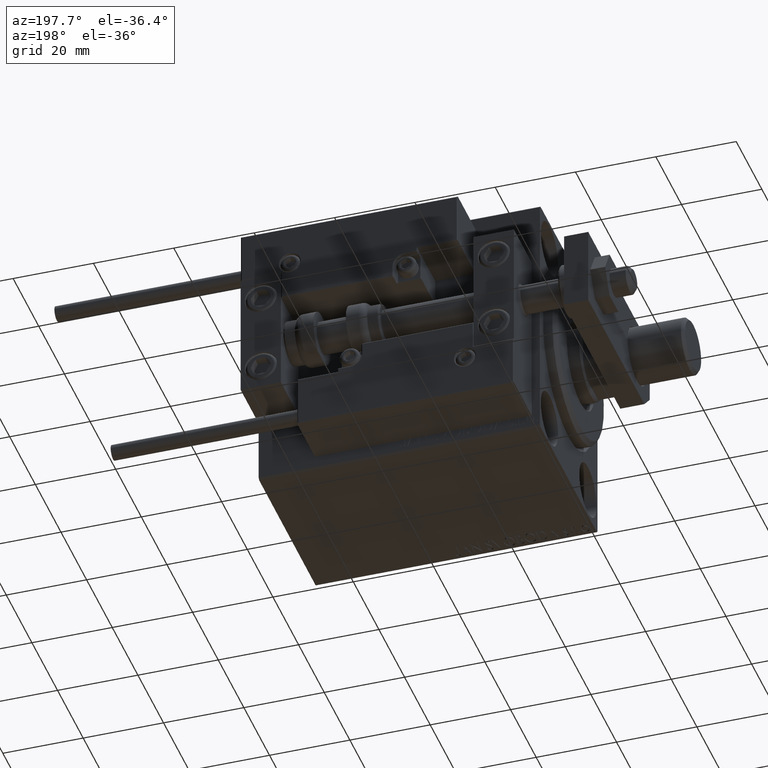
[diagram: clean part render]
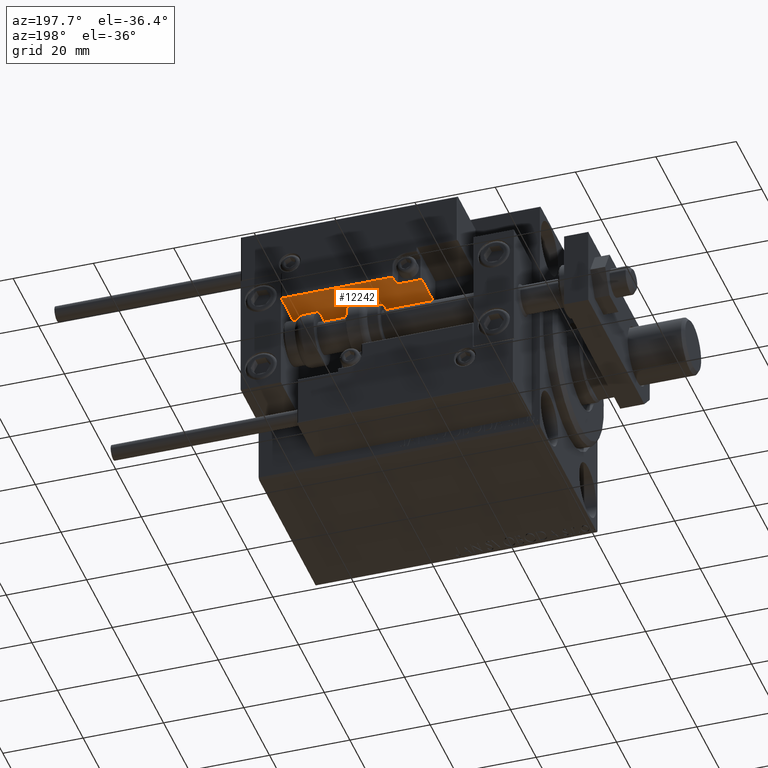
[diagram: same view with one face highlighted and labeled with its STEP entity id]
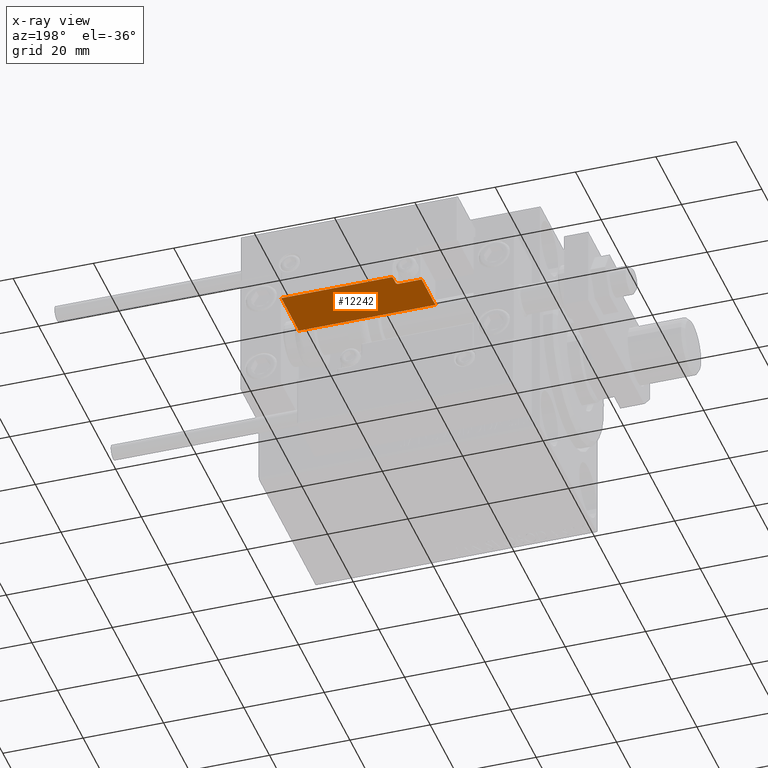
[diagram: x-ray of the same camera — body ghosted, the highlighted face saturated]
A machine part, auxiliary view. The second image highlights one B-rep face of the part: STEP entity #12242.
The next image is the same camera in x-ray: the body ghosted, the highlighted face saturated — about 0% of this face is hidden behind the body in this view.
In plain terms, the highlighted planar face has unit normal (0, 0, 1).
Its self-contained STEP definition (entity closure, byte-faithful):
#562 = DIRECTION ( 'NONE',  ( 0.000000000000000000, -0.000000000000000000, 1.000000000000000000 ) ) ;
#1618 = LINE ( 'NONE', #32215, #24381 ) ;
#1845 = CARTESIAN_POINT ( 'NONE',  ( -16.99999999999999289, 3.252606517456513302E-15, 0.000000000000000000 ) ) ;
#4420 = FACE_OUTER_BOUND ( 'NONE', #16073, .T. ) ;
#4480 = ORIENTED_EDGE ( 'NONE', *, *, #11266, .T. ) ;
#4679 = DIRECTION ( 'NONE',  ( 0.000000000000000000, 1.000000000000000000, 0.000000000000000000 ) ) ;
#5759 = VECTOR ( 'NONE', #41524, 1000.000000000000000 ) ;
#5777 = ORIENTED_EDGE ( 'NONE', *, *, #9289, .F. ) ;
#7116 = ORIENTED_EDGE ( 'NONE', *, *, #19407, .T. ) ;
#7751 = CARTESIAN_POINT ( 'NONE',  ( 16.99999999999999289, 3.252606517456513302E-15, 10.69999999999999929 ) ) ;
#8753 = CARTESIAN_POINT ( 'NONE',  ( 16.99999999999999289, 3.252606517456513302E-15, 0.000000000000000000 ) ) ;
#9057 = DIRECTION ( 'NONE',  ( 1.000000000000000000, 0.000000000000000000, 0.000000000000000000 ) ) ;
#9289 = EDGE_CURVE ( 'NONE', #13758, #43173, #19810, .T. ) ;
#9803 = LINE ( 'NONE', #1845, #28023 ) ;
#10137 = CIRCLE ( 'NONE', #50305, 0.5999999999999998668 ) ;
#10314 = ORIENTED_EDGE ( 'NONE', *, *, #13569, .T. ) ;
#11266 = EDGE_CURVE ( 'NONE', #33404, #25449, #16734, .T. ) ;
#11305 = CARTESIAN_POINT ( 'NONE',  ( -16.99999999999999289, 3.252606517456513302E-15, 13.70000000000000107 ) ) ;
#11585 = CARTESIAN_POINT ( 'NONE',  ( 10.70000000000000107, 3.252606517456513302E-15, 13.70000000000000107 ) ) ;
#11826 = CARTESIAN_POINT ( 'NONE',  ( 16.99999999999999289, 3.252606517456513302E-15, 14.00000000000000000 ) ) ;
#12100 = ORIENTED_EDGE ( 'NONE', *, *, #25245, .T. ) ;
#12242 = ADVANCED_FACE ( 'NONE', ( #4420 ), #23953, .F. ) ;
#12252 = CARTESIAN_POINT ( 'NONE',  ( 11.29999999999999893, 3.252606517456513302E-15, 11.29999999999999893 ) ) ;
#13569 = EDGE_CURVE ( 'NONE', #24704, #33404, #1618, .T. ) ;
#13758 = VERTEX_POINT ( 'NONE', #7751 ) ;
#13919 = VERTEX_POINT ( 'NONE', #36006 ) ;
#16073 = EDGE_LOOP ( 'NONE', ( #5777, #12100, #33713, #7116, #10314, #4480, #39631 ) ) ;
#16734 = LINE ( 'NONE', #20850, #19386 ) ;
#19386 = VECTOR ( 'NONE', #31637, 1000.000000000000000 ) ;
#19407 = EDGE_CURVE ( 'NONE', #47455, #24704, #40102, .T. ) ;
#19810 = LINE ( 'NONE', #11826, #30157 ) ;
#20100 = CARTESIAN_POINT ( 'NONE',  ( -16.99999999999999289, 3.252606517456513302E-15, 14.00000000000000000 ) ) ;
#20237 = DIRECTION ( 'NONE',  ( 0.000000000000000000, 0.000000000000000000, 1.000000000000000000 ) ) ;
#20600 = CARTESIAN_POINT ( 'NONE',  ( 10.70000000000000107, 3.252606517456513302E-15, 14.00000000000000000 ) ) ;
#20850 = CARTESIAN_POINT ( 'NONE',  ( -16.99999999999999289, 3.252606517456513302E-15, 14.00000000000000000 ) ) ;
#23604 = VECTOR ( 'NONE', #36254, 1000.000000000000000 ) ;
#23953 = PLANE ( 'NONE',  #28445 ) ;
#24381 = VECTOR ( 'NONE', #48351, 1000.000000000000000 ) ;
#24704 = VERTEX_POINT ( 'NONE', #11585 ) ;
#25245 = EDGE_CURVE ( 'NONE', #13758, #13919, #30237, .T. ) ;
#25449 = VERTEX_POINT ( 'NONE', #44555 ) ;
#26904 = CARTESIAN_POINT ( 'NONE',  ( 11.00000000000000000, 3.252606517456513302E-15, 10.69999999999999929 ) ) ;
#28023 = VECTOR ( 'NONE', #9057, 1000.000000000000000 ) ;
#28445 = AXIS2_PLACEMENT_3D ( 'NONE', #20100, #4679, #562 ) ;
#30157 = VECTOR ( 'NONE', #42418, 1000.000000000000000 ) ;
#30237 = LINE ( 'NONE', #26904, #5759 ) ;
#31637 = DIRECTION ( 'NONE',  ( -0.000000000000000000, -0.000000000000000000, -1.000000000000000000 ) ) ;
#32215 = CARTESIAN_POINT ( 'NONE',  ( -16.99999999999999289, 3.252606517456513302E-15, 13.70000000000000107 ) ) ;
#33404 = VERTEX_POINT ( 'NONE', #11305 ) ;
#33713 = ORIENTED_EDGE ( 'NONE', *, *, #48526, .F. ) ;
#36006 = CARTESIAN_POINT ( 'NONE',  ( 11.29999999999999893, 3.252606517456513302E-15, 10.69999999999999929 ) ) ;
#36254 = DIRECTION ( 'NONE',  ( 0.000000000000000000, -0.000000000000000000, 1.000000000000000000 ) ) ;
#37575 = CARTESIAN_POINT ( 'NONE',  ( 10.70000000000000107, 3.252606517456513302E-15, 11.29999999999999893 ) ) ;
#39631 = ORIENTED_EDGE ( 'NONE', *, *, #42910, .T. ) ;
#40102 = LINE ( 'NONE', #20600, #23604 ) ;
#41524 = DIRECTION ( 'NONE',  ( -1.000000000000000000, 0.000000000000000000, -0.000000000000000000 ) ) ;
#42418 = DIRECTION ( 'NONE',  ( -0.000000000000000000, -0.000000000000000000, -1.000000000000000000 ) ) ;
#42824 = DIRECTION ( 'NONE',  ( -0.000000000000000000, -1.000000000000000000, -0.000000000000000000 ) ) ;
#42910 = EDGE_CURVE ( 'NONE', #25449, #43173, #9803, .T. ) ;
#43173 = VERTEX_POINT ( 'NONE', #8753 ) ;
#44555 = CARTESIAN_POINT ( 'NONE',  ( -16.99999999999999289, 3.252606517456513302E-15, 0.000000000000000000 ) ) ;
#47455 = VERTEX_POINT ( 'NONE', #37575 ) ;
#48351 = DIRECTION ( 'NONE',  ( -1.000000000000000000, 0.000000000000000000, -0.000000000000000000 ) ) ;
#48526 = EDGE_CURVE ( 'NONE', #47455, #13919, #10137, .T. ) ;
#50305 = AXIS2_PLACEMENT_3D ( 'NONE', #12252, #42824, #20237 ) ;